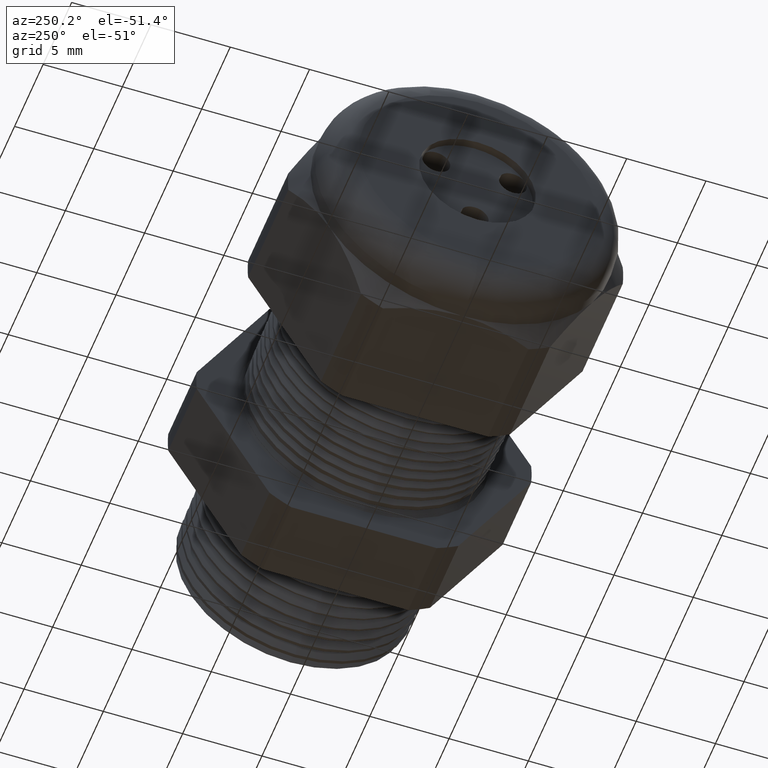
[diagram: clean part render]
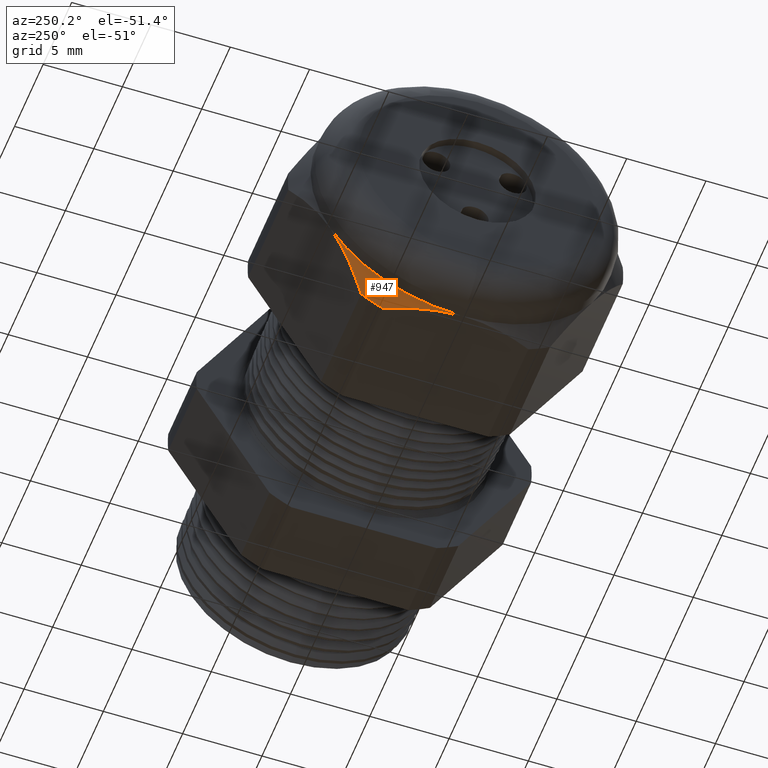
[diagram: same view with one face highlighted and labeled with its STEP entity id]
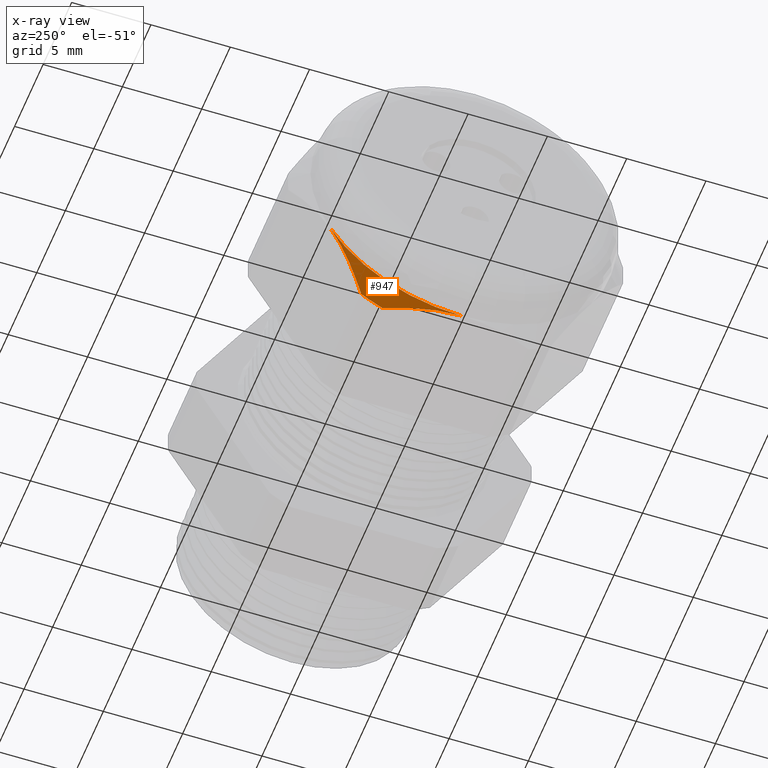
[diagram: x-ray of the same camera — body ghosted, the highlighted face saturated]
A machine part, auxiliary view. The second image highlights one B-rep face of the part: STEP entity #947.
The next image is the same camera in x-ray: the body ghosted, the highlighted face saturated — about 0% of this face is hidden behind the body in this view.
In plain terms, the highlighted conical surface has half-angle 45 deg.
Its self-contained STEP definition (entity closure, byte-faithful):
#583 = VERTEX_POINT ( 'NONE', #2892 ) ;
#585 = EDGE_CURVE ( 'NONE', #583, #2084, #2891, .T. ) ;
#637 = EDGE_CURVE ( 'NONE', #2080, #651, #3006, .T. ) ;
#651 = VERTEX_POINT ( 'NONE', #3027 ) ;
#653 = EDGE_CURVE ( 'NONE', #651, #583, #3026, .T. ) ;
#947 = ADVANCED_FACE ( 'NONE', ( #3517 ), #3516, .T. ) ;
#948 = EDGE_LOOP ( 'NONE', ( #949, #1003, #1004, #1005 ) ) ;
#949 = ORIENTED_EDGE ( 'NONE', *, *, #2082, .T. ) ;
#1003 = ORIENTED_EDGE ( 'NONE', *, *, #585, .F. ) ;
#1004 = ORIENTED_EDGE ( 'NONE', *, *, #653, .F. ) ;
#1005 = ORIENTED_EDGE ( 'NONE', *, *, #637, .F. ) ;
#2080 = VERTEX_POINT ( 'NONE', #4777 ) ;
#2082 = EDGE_CURVE ( 'NONE', #2080, #2084, #4775, .T. ) ;
#2084 = VERTEX_POINT ( 'NONE', #4765 ) ;
#2883 = CARTESIAN_POINT ( 'NONE',  ( -1.179763779527558800, 0.3247595264191645600, -0.1875000000000000800 ) ) ;
#2884 = CARTESIAN_POINT ( 'NONE',  ( -1.179763779527559100, 0.3169392765875834200, -0.2010450700361805200 ) ) ;
#2885 = CARTESIAN_POINT ( 'NONE',  ( -1.178759730589041200, 0.3090355397383389200, -0.2147347438287267000 ) ) ;
#2886 = CARTESIAN_POINT ( 'NONE',  ( -1.174926254644834500, 0.2935887246993246200, -0.2414894122914183800 ) ) ;
#2887 = CARTESIAN_POINT ( 'NONE',  ( -1.172104445229484600, 0.2859780998530065400, -0.2546714012025871300 ) ) ;
#2888 = CARTESIAN_POINT ( 'NONE',  ( -1.161298346633054400, 0.2634379006963006900, -0.2937121713547228300 ) ) ;
#2889 = CARTESIAN_POINT ( 'NONE',  ( -1.150987746498827000, 0.2487982124163726800, -0.3190688552625291500 ) ) ;
#2890 = CARTESIAN_POINT ( 'NONE',  ( -1.138513779527559100, 0.2344281053908203200, -0.3439586107409879900 ) ) ;
#2891 = B_SPLINE_CURVE_WITH_KNOTS ( 'NONE', 3,
 ( #2890, #2889, #2888, #2887, #2886, #2885, #2884, #2883 ),
 .UNSPECIFIED., .F., .F.,
 ( 4, 2, 2, 4 ),
 ( 2.483253706007067000E-007, 0.002355112334987633500, 0.003532544339796147700, 0.004709976344604661900 ),
 .UNSPECIFIED. ) ;
#2892 = CARTESIAN_POINT ( 'NONE',  ( -1.138513779527559100, 0.2344281053908203200, -0.3439586107409879900 ) ) ;
#2995 = CARTESIAN_POINT ( 'NONE',  ( -1.138513779527559100, 0.1806628420566883400, -0.3750000000000002200 ) ) ;
#2996 = CARTESIAN_POINT ( 'NONE',  ( -1.150859887633265200, 0.1522172168218788600, -0.3750000000000002200 ) ) ;
#2997 = CARTESIAN_POINT ( 'NONE',  ( -1.161355067212263700, 0.1224785947535362000, -0.3750000000000001700 ) ) ;
#2998 = CARTESIAN_POINT ( 'NONE',  ( -1.172160678549065200, 0.07729185397029256200, -0.3750000000000002200 ) ) ;
#2999 = CARTESIAN_POINT ( 'NONE',  ( -1.174967165678735000, 0.06207756443688115800, -0.3750000000000001700 ) ) ;
#3000 = CARTESIAN_POINT ( 'NONE',  ( -1.178769479952293900, 0.03130286613836864900, -0.3750000000000001700 ) ) ;
#3001 = CARTESIAN_POINT ( 'NONE',  ( -1.179763779527558800, 0.01568637131276641100, -0.3750000000000001100 ) ) ;
#3002 = CARTESIAN_POINT ( 'NONE',  ( -1.179763779527558800, 0.0000000000000000000, -0.3750000000000001700 ) ) ;
#3006 = B_SPLINE_CURVE_WITH_KNOTS ( 'NONE', 3,
 ( #3002, #3001, #3000, #2999, #2998, #2997, #2996, #2995 ),
 .UNSPECIFIED., .F., .F.,
 ( 4, 2, 2, 4 ),
 ( 0.01136407599362878600, 0.01253729531775339900, 0.01371051464187800900, 0.01605695329012723400 ),
 .UNSPECIFIED. ) ;
#3022 = DIRECTION ( 'NONE',  ( 0.0000000000000000000, 0.0000000000000000000, -1.000000000000000000 ) ) ;
#3023 = DIRECTION ( 'NONE',  ( 1.000000000000000000, 0.0000000000000000000, 0.0000000000000000000 ) ) ;
#3024 = CARTESIAN_POINT ( 'NONE',  ( -1.138513779527559100, 0.0000000000000000000, 0.0000000000000000000 ) ) ;
#3025 = AXIS2_PLACEMENT_3D ( 'NONE', #3024, #3023, #3022 ) ;
#3026 = CIRCLE ( 'NONE', #3025, 0.4162500000000001200 ) ;
#3027 = CARTESIAN_POINT ( 'NONE',  ( -1.138513779527559100, 0.1806628420566883400, -0.3750000000000002200 ) ) ;
#3513 = DIRECTION ( 'NONE',  ( 1.000000000000000000, 0.0000000000000000000, 0.0000000000000000000 ) ) ;
#3514 = AXIS2_PLACEMENT_3D ( 'NONE', #3523, #3513, #3579 ) ;
#3516 = CONICAL_SURFACE ( 'NONE', #3514, 0.3750000000000001100, 0.7853981633974501700 ) ;
#3517 = FACE_OUTER_BOUND ( 'NONE', #948, .T. ) ;
#3523 = CARTESIAN_POINT ( 'NONE',  ( -1.179763779527558800, 0.0000000000000000000, 0.0000000000000000000 ) ) ;
#3579 = DIRECTION ( 'NONE',  ( 0.0000000000000000000, 0.0000000000000000000, 1.000000000000000000 ) ) ;
#4765 = CARTESIAN_POINT ( 'NONE',  ( -1.179763779527558800, 0.3247595264191645600, -0.1875000000000000800 ) ) ;
#4771 = DIRECTION ( 'NONE',  ( 0.0000000000000000000, 0.0000000000000000000, -1.000000000000000000 ) ) ;
#4772 = DIRECTION ( 'NONE',  ( 1.000000000000000000, 0.0000000000000000000, 0.0000000000000000000 ) ) ;
#4773 = CARTESIAN_POINT ( 'NONE',  ( -1.179763779527558800, 0.0000000000000000000, 0.0000000000000000000 ) ) ;
#4774 = AXIS2_PLACEMENT_3D ( 'NONE', #4773, #4772, #4771 ) ;
#4775 = CIRCLE ( 'NONE', #4774, 0.3750000000000000600 ) ;
#4777 = CARTESIAN_POINT ( 'NONE',  ( -1.179763779527558800, 0.0000000000000000000, -0.3750000000000001700 ) ) ;